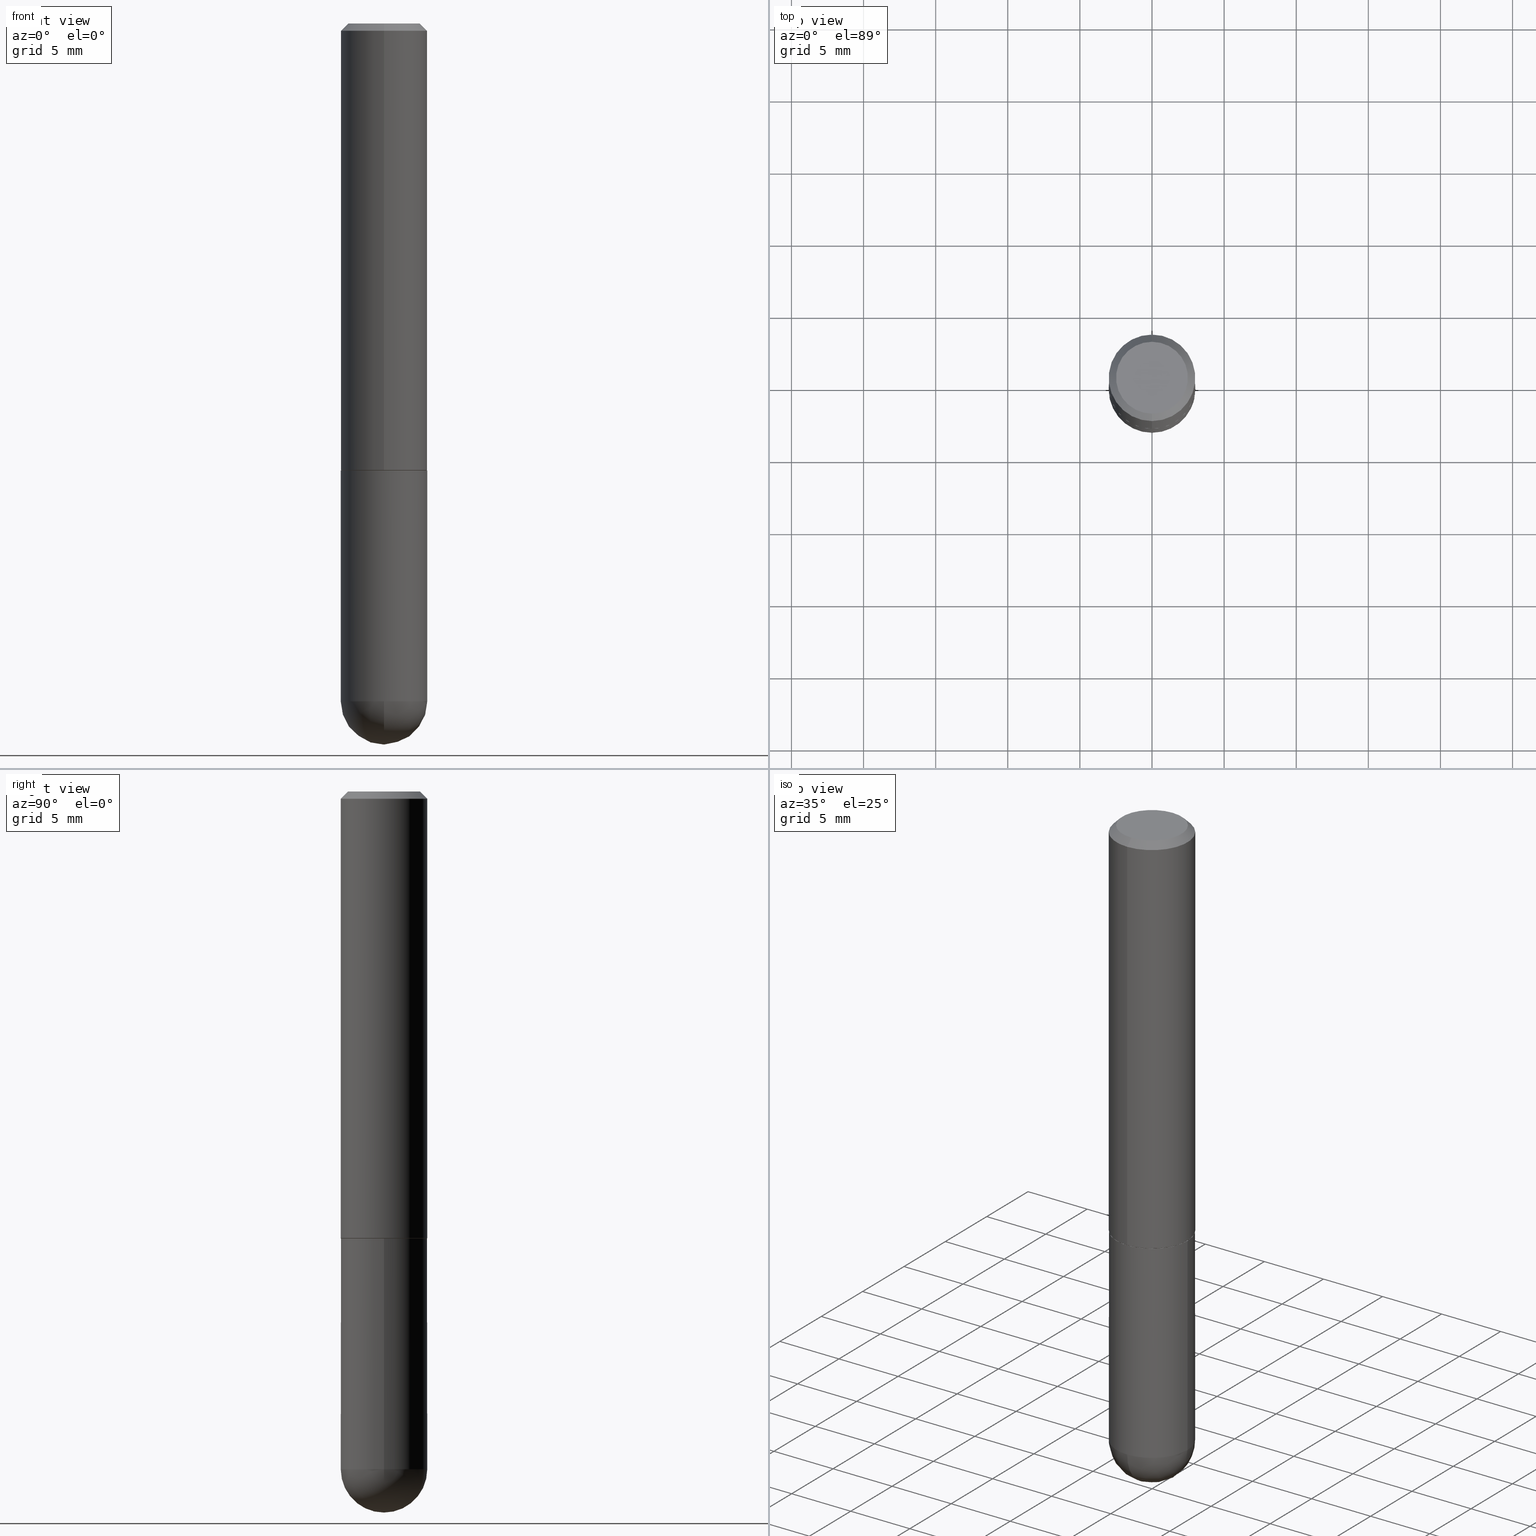
[diagram: canonical four-view strip — front | top / right | iso, engineering-drawing reading convention]
A machine part, canonical four-view strip (front | top / right | iso — engineering-drawing reading convention). The complete STEP part file that produces these views, byte-faithful:
ISO-10303-21;
HEADER;
FILE_DESCRIPTION (( 'STEP AP203' ),
    '1' );
FILE_NAME ('48744.STEP',
    '2024-04-10T12:00:42',
    ( '' ),
    ( '' ),
    'SwSTEP 2.0',
    'SolidWorks 2023',
    '' );
FILE_SCHEMA (( 'CONFIG_CONTROL_DESIGN' ));
ENDSEC;

DATA;
#1 = LINE ( 'NONE', #315, #317 ) ;
#2 = ORIENTED_EDGE ( 'NONE', *, *, #122, .T. ) ;
#3 = ADVANCED_FACE ( 'NONE', ( #96 ), #119, .T. ) ;
#4 = AXIS2_PLACEMENT_3D ( 'NONE', #158, #280, #409 ) ;
#5 = CARTESIAN_POINT ( 'NONE',  ( 8.320455435751069684E-16, 0.1170999999999957492, -1.220500000000000362 ) ) ;
#6 = FACE_OUTER_BOUND ( 'NONE', #278, .T. ) ;
#7 = CYLINDRICAL_SURFACE ( 'NONE', #321, 0.1180999999999999966 ) ;
#8 = EDGE_LOOP ( 'NONE', ( #136, #338, #405, #237 ) ) ;
#9 = DIRECTION ( 'NONE',  ( -2.446608497721967489E-29, 3.489849235695189824E-15, 1.000000000000000000 ) ) ;
#10 = DIRECTION ( 'NONE',  ( -2.445468806185136877E-29, 3.491481338843145188E-15, 1.000000000000000000 ) ) ;
#11 = CARTESIAN_POINT ( 'NONE',  ( 2.986085671469661143E-29, -4.259360992165978220E-15, -1.220499999999999918 ) ) ;
#12 = ADVANCED_FACE ( 'NONE', ( #340 ), #323, .T. ) ;
#13 = AXIS2_PLACEMENT_3D ( 'NONE', #80, #145, #355 ) ;
#14 = DIRECTION ( 'NONE',  ( -2.445468806185136597E-29, 3.491481338843145583E-15, 1.000000000000000000 ) ) ;
#15 = CARTESIAN_POINT ( 'NONE',  ( 2.197026823691284091E-45, -3.133845234576704690E-31, -8.979887161092311075E-17 ) ) ;
#16 = DIRECTION ( 'NONE',  ( -6.982962677686265922E-15, -1.000000000000000000, 3.505890868245046092E-15 ) ) ;
#17 = COORDINATED_UNIVERSAL_TIME_OFFSET ( 5, 0, .BEHIND. ) ;
#18 = EDGE_CURVE ( 'NONE', #108, #240, #47, .T. ) ;
#19 = CARTESIAN_POINT ( 'NONE',  ( 2.986085671469661704E-29, -4.259360992165979009E-15, -1.220499999999999918 ) ) ;
#20 = CARTESIAN_POINT ( 'NONE',  ( 4.893216995443941564E-31, -6.979698471390387290E-17, -0.02000000000000002470 ) ) ;
#21 = CC_DESIGN_PERSON_AND_ORGANIZATION_ASSIGNMENT ( #393, #275, ( #181 ) ) ;
#22 = CIRCLE ( 'NONE', #272, 0.1180999999999999966 ) ;
#23 = DIRECTION ( 'NONE',  ( 1.000000000000000000, -6.982962677686265133E-15, 0.000000000000000000 ) ) ;
#24 = PERSON_AND_ORGANIZATION_ROLE ( 'creator' ) ;
#25 = AXIS2_PLACEMENT_3D ( 'NONE', #232, #69, #106 ) ;
#26 = CARTESIAN_POINT ( 'NONE',  ( 8.355982572539081628E-16, 0.1170999999999957492, -1.220500000000000362 ) ) ;
#27 = APPROVAL_ROLE ( '' ) ;
#28 = EDGE_CURVE ( 'NONE', #247, #198, #192, .T. ) ;
#29 = CALENDAR_DATE ( 2024, 10, 4 ) ;
#30 = DIRECTION ( 'NONE',  ( -7.105427357601000281E-15, -1.000000000000000000, 0.000000000000000000 ) ) ;
#31 = ORIENTED_EDGE ( 'NONE', *, *, #374, .T. ) ;
#32 = ORIENTED_EDGE ( 'NONE', *, *, #365, .T. ) ;
#33 = CC_DESIGN_APPROVAL ( #35, ( #181 ) ) ;
#34 = DIRECTION ( 'NONE',  ( 2.446608497721967489E-29, -3.489849235695189824E-15, -1.000000000000000000 ) ) ;
#35 = APPROVAL ( #184, 'UNSPECIFIED' ) ;
#36 = AXIS2_PLACEMENT_3D ( 'NONE', #15, #271, #177 ) ;
#37 = AXIS2_PLACEMENT_3D ( 'NONE', #204, #391, #43 ) ;
#38 = CYLINDRICAL_SURFACE ( 'NONE', #361, 0.1180999999999999966 ) ;
#39 = DIRECTION ( 'NONE',  ( -6.982962677686265922E-15, -1.000000000000000000, 3.469747663417772269E-15 ) ) ;
#40 = COORDINATED_UNIVERSAL_TIME_OFFSET ( 5, 0, .BEHIND. ) ;
#41 = CONICAL_SURFACE ( 'NONE', #161, 0.1170999999999999958, 0.7853981633976361287 ) ;
#42 = CARTESIAN_POINT ( 'NONE',  ( -8.177049295570318772E-16, -0.1171000000000042424, -1.220499999999999474 ) ) ;
#43 = DIRECTION ( 'NONE',  ( -6.982962677686265922E-15, -1.000000000000000000, 3.499378301021686484E-15 ) ) ;
#44 = ORIENTED_EDGE ( 'NONE', *, *, #18, .T. ) ;
#45 = DIRECTION ( 'NONE',  ( 2.438088387897960049E-29, -3.491481338843145188E-15, -1.000000000000000000 ) ) ;
#46 = VERTEX_POINT ( 'NONE', #290 ) ;
#47 = LINE ( 'NONE', #327, #285 ) ;
#48 = DIRECTION ( 'NONE',  ( -6.982962677686265922E-15, -1.000000000000000000, 3.489849235695189824E-15 ) ) ;
#49 = EDGE_LOOP ( 'NONE', ( #227, #44, #346, #388 ) ) ;
#50 = ORGANIZATION ( 'UNSPECIFIED', 'UNSPECIFIED', '' ) ;
#51 = CARTESIAN_POINT ( 'NONE',  ( -8.177049295570318772E-16, -0.1171000000000042424, -1.220499999999999474 ) ) ;
#52 = CARTESIAN_POINT ( 'NONE',  ( 4.193975701051090586E-29, -6.934819437535407083E-15, -1.850400000000000045 ) ) ;
#53 = CYLINDRICAL_SURFACE ( 'NONE', #25, 0.1181000000000000799 ) ;
#54 = DIRECTION ( 'NONE',  ( -2.446608497721967489E-29, 3.489849235695189824E-15, 1.000000000000000000 ) ) ;
#55 = PERSON_AND_ORGANIZATION ( #292, #50 ) ;
#56 = ORIENTED_EDGE ( 'NONE', *, *, #166, .T. ) ;
#57 = DATE_AND_TIME ( #118, #279 ) ;
#58 = CARTESIAN_POINT ( 'NONE',  ( 6.850286386810235398E-16, 0.09810000000000010378, -3.872536458271600685E-16 ) ) ;
#59 = DATE_AND_TIME ( #248, #411 ) ;
#60 = DIMENSIONAL_EXPONENTS ( 1.000000000000000000, 0.000000000000000000, 0.000000000000000000, 0.000000000000000000, 0.000000000000000000, 0.000000000000000000, 0.000000000000000000 ) ;
#61 = EDGE_CURVE ( 'NONE', #46, #125, #67, .T. ) ;
#62 = VECTOR ( 'NONE', #328, 39.37007874015748143 ) ;
#63 = ADVANCED_FACE ( 'NONE', ( #64 ), #7, .T. ) ;
#64 = FACE_OUTER_BOUND ( 'NONE', #263, .T. ) ;
#65 = VERTEX_POINT ( 'NONE', #130 ) ;
#66 = DIRECTION ( 'NONE',  ( -2.446608497721967489E-29, 3.489849235695189824E-15, 1.000000000000000000 ) ) ;
#67 = LINE ( 'NONE', #197, #114 ) ;
#68 = DIRECTION ( 'NONE',  ( 6.982962677686265922E-15, 1.000000000000000000, -4.626330217890359870E-15 ) ) ;
#69 = DIRECTION ( 'NONE',  ( -2.446608497721967489E-29, 3.489849235695189824E-15, 1.000000000000000000 ) ) ;
#70 = CARTESIAN_POINT ( 'NONE',  ( 4.193975701051090586E-29, -6.934819437535407083E-15, -1.850400000000000045 ) ) ;
#71 = EDGE_CURVE ( 'NONE', #243, #100, #22, .T. ) ;
#72 = PERSON_AND_ORGANIZATION_ROLE ( 'design_supplier' ) ;
#73 = CARTESIAN_POINT ( 'NONE',  ( 8.391509709326787887E-16, 0.1181000000000000799, -4.121511947356022073E-16 ) ) ;
#74 = DIRECTION ( 'NONE',  ( 1.000000000000000000, -6.982962677686265133E-15, 0.000000000000000000 ) ) ;
#75 = APPLICATION_PROTOCOL_DEFINITION ( 'international standard', 'config_control_design', 1994, #148 ) ;
#76 = CONICAL_SURFACE ( 'NONE', #37, 0.1170999999999999958, 0.7853981633976361287 ) ;
#77 = EDGE_CURVE ( 'NONE', #375, #108, #144, .T. ) ;
#78 = CARTESIAN_POINT ( 'NONE',  ( 8.246878922347925374E-16, 0.1180999999999934463, -1.850400000000000489 ) ) ;
#79 = APPROVAL_DATE_TIME ( #366, #91 ) ;
#80 = CARTESIAN_POINT ( 'NONE',  ( 2.984694677948959472E-29, -4.261352974058059028E-15, -1.220499999999999918 ) ) ;
#81 = ORIENTED_EDGE ( 'NONE', *, *, #250, .T. ) ;
#82 = SHAPE_DEFINITION_REPRESENTATION ( #135, #304 ) ;
#83 = APPROVAL_STATUS ( 'not_yet_approved' ) ;
#84 = APPROVAL_PERSON_ORGANIZATION ( #398, #91, #179 ) ;
#85 = DIRECTION ( 'NONE',  ( -2.445468806185136597E-29, 3.491481338843145583E-15, 1.000000000000000000 ) ) ;
#86 = ORIENTED_EDGE ( 'NONE', *, *, #88, .F. ) ;
#87 = COORDINATED_UNIVERSAL_TIME_OFFSET ( 5, 0, .BEHIND. ) ;
#88 = EDGE_CURVE ( 'NONE', #392, #243, #410, .T. ) ;
#89 = CARTESIAN_POINT ( 'NONE',  ( 4.893216995443941564E-31, -6.979698471390387290E-17, -0.02000000000000002470 ) ) ;
#90 = ORIENTED_EDGE ( 'NONE', *, *, #71, .T. ) ;
#91 = APPROVAL ( #277, 'UNSPECIFIED' ) ;
#92 = VERTEX_POINT ( 'NONE', #51 ) ;
#93 = EDGE_CURVE ( 'NONE', #243, #65, #137, .T. ) ;
#94 =( NAMED_UNIT ( * ) SI_UNIT ( $, .STERADIAN. ) SOLID_ANGLE_UNIT ( ) );
#95 = CARTESIAN_POINT ( 'NONE',  ( 4.893216995443941564E-31, -6.979698471390387290E-17, -0.02000000000000002470 ) ) ;
#96 = FACE_OUTER_BOUND ( 'NONE', #49, .T. ) ;
#97 = CARTESIAN_POINT ( 'NONE',  ( 8.246878922347778449E-16, 0.1180999999999957362, -1.220500000000000362 ) ) ;
#98 = CIRCLE ( 'NONE', #246, 0.1180999999999999966 ) ;
#99 = DIRECTION ( 'NONE',  ( -6.982962677686265922E-15, -1.000000000000000000, 3.499378301021686484E-15 ) ) ;
#100 = VERTEX_POINT ( 'NONE', #359 ) ;
#101 = DIRECTION ( 'NONE',  ( -2.445468806185136597E-29, 3.491481338843145583E-15, 1.000000000000000000 ) ) ;
#102 = CC_DESIGN_PERSON_AND_ORGANIZATION_ASSIGNMENT ( #339, #301, ( #382 ) ) ;
#103 = VECTOR ( 'NONE', #110, 39.37007874015748143 ) ;
#104 = LOCAL_TIME ( 8, 0, 42.00000000000000000, #87 ) ;
#105 = PRODUCT_RELATED_PRODUCT_CATEGORY ( 'detail', '', ( #382 ) ) ;
#106 = DIRECTION ( 'NONE',  ( -6.982962677686265922E-15, -1.000000000000000000, 3.489849235695189824E-15 ) ) ;
#107 = ORIENTED_EDGE ( 'NONE', *, *, #347, .F. ) ;
#108 = VERTEX_POINT ( 'NONE', #274 ) ;
#109 = FACE_OUTER_BOUND ( 'NONE', #408, .T. ) ;
#110 = DIRECTION ( 'NONE',  ( -2.445468806185136877E-29, 3.491481338843145188E-15, 1.000000000000000000 ) ) ;
#111 = ORIENTED_EDGE ( 'NONE', *, *, #374, .F. ) ;
#112 = CARTESIAN_POINT ( 'NONE',  ( -8.246878922347485584E-16, -0.1181000000000000799, 4.121511947356022073E-16 ) ) ;
#113 = DIRECTION ( 'NONE',  ( 5.024295867789005867E-15, 0.7071067811866827979, 0.7071067811864122366 ) ) ;
#114 = VECTOR ( 'NONE', #10, 39.37007874015748143 ) ;
#115 = AXIS2_PLACEMENT_3D ( 'NONE', #19, #270, #48 ) ;
#116 = CARTESIAN_POINT ( 'NONE',  ( 0.000000000000000000, 0.000000000000000000, 0.000000000000000000 ) ) ;
#117 = ADVANCED_FACE ( 'NONE', ( #268 ), #389, .T. ) ;
#118 = CALENDAR_DATE ( 2024, 10, 4 ) ;
#119 = CONICAL_SURFACE ( 'NONE', #329, 0.1180999999999999966, 0.7853981633974471688 ) ;
#120 = AXIS2_PLACEMENT_3D ( 'NONE', #95, #386, #223 ) ;
#121 = ORIENTED_EDGE ( 'NONE', *, *, #236, .F. ) ;
#122 = EDGE_CURVE ( 'NONE', #138, #392, #159, .T. ) ;
#123 = MANIFOLD_SOLID_BREP ( 'Body-Move/Copy2[2]', #180 ) ;
#124 = CARTESIAN_POINT ( 'NONE',  ( -8.246878922347193706E-16, -0.1181000000000044237, -1.219499999999999584 ) ) ;
#125 = VERTEX_POINT ( 'NONE', #334 ) ;
#126 = AXIS2_PLACEMENT_3D ( 'NONE', #97, #45, #203 ) ;
#127 = DIRECTION ( 'NONE',  ( 1.000000000000000000, -6.982962677686266711E-15, 4.876176775795936353E-29 ) ) ;
#128 = CARTESIAN_POINT ( 'NONE',  ( 8.246878922347484598E-16, 0.1180999999999999273, -0.02000000000000044104 ) ) ;
#129 = ADVANCED_FACE ( 'NONE', ( #142 ), #396, .T. ) ;
#130 = CARTESIAN_POINT ( 'NONE',  ( -0.1180999999999999966, -4.521844050794029710E-15, -1.220499999999999918 ) ) ;
#131 = EDGE_LOOP ( 'NONE', ( #300, #2, #121, #404 ) ) ;
#132 = CC_DESIGN_DATE_AND_TIME_ASSIGNMENT ( #57, #141, ( #238 ) ) ;
#133 = ORIENTED_EDGE ( 'NONE', *, *, #61, .F. ) ;
#134 = AXIS2_PLACEMENT_3D ( 'NONE', #156, #222, #162 ) ;
#135 = PRODUCT_DEFINITION_SHAPE ( 'NONE', 'NONE',  #238 ) ;
#136 = ORIENTED_EDGE ( 'NONE', *, *, #28, .T. ) ;
#137 = LINE ( 'NONE', #147, #103 ) ;
#138 = VERTEX_POINT ( 'NONE', #367 ) ;
#139 = APPROVAL_DATE_TIME ( #151, #350 ) ;
#140 = EDGE_LOOP ( 'NONE', ( #165, #169, #291, #81 ) ) ;
#141 = DATE_TIME_ROLE ( 'creation_date' ) ;
#142 = FACE_OUTER_BOUND ( 'NONE', #154, .T. ) ;
#143 = DIRECTION ( 'NONE',  ( -2.446608497721967489E-29, 3.489849235695189824E-15, 1.000000000000000000 ) ) ;
#144 = CIRCLE ( 'NONE', #36, 0.09810000000000010378 ) ;
#145 = DIRECTION ( 'NONE',  ( -2.445468806185136597E-29, 3.491481338843145583E-15, 1.000000000000000000 ) ) ;
#146 = PRODUCT_DEFINITION_FORMATION_WITH_SPECIFIED_SOURCE ( 'ANY', '', #382, .NOT_KNOWN. ) ;
#147 = CARTESIAN_POINT ( 'NONE',  ( -0.1180999999999999966, 8.391509709326782957E-16, -5.809262341591043784E-30 ) ) ;
#148 = APPLICATION_CONTEXT ( 'configuration controlled 3d designs of mechanical parts and assemblies' ) ;
#149 = DIRECTION ( 'NONE',  ( -2.445468806185136597E-29, 3.491481338843145583E-15, 1.000000000000000000 ) ) ;
#150 = EDGE_LOOP ( 'NONE', ( #352, #364 ) ) ;
#151 = DATE_AND_TIME ( #29, #104 ) ;
#152 = AXIS2_PLACEMENT_3D ( 'NONE', #353, #200, #39 ) ;
#153 = AXIS2_PLACEMENT_3D ( 'NONE', #191, #342, #30 ) ;
#154 = EDGE_LOOP ( 'NONE', ( #319, #31, #216, #309 ) ) ;
#155 = EDGE_LOOP ( 'NONE', ( #269, #90, #56, #228, #343 ) ) ;
#156 = CARTESIAN_POINT ( 'NONE',  ( 0.000000000000000000, 0.000000000000000000, 0.000000000000000000 ) ) ;
#157 = EDGE_CURVE ( 'NONE', #65, #125, #316, .T. ) ;
#158 = CARTESIAN_POINT ( 'NONE',  ( 2.986085671469661143E-29, -4.259360992165978220E-15, -1.220499999999999918 ) ) ;
#159 = CIRCLE ( 'NONE', #406, 0.1181000000000002603 ) ;
#160 =( LENGTH_UNIT ( ) NAMED_UNIT ( * ) SI_UNIT ( $, .METRE. ) );
#161 = AXIS2_PLACEMENT_3D ( 'NONE', #282, #379, #99 ) ;
#162 = DIRECTION ( 'NONE',  ( 1.000000000000000000, 0.000000000000000000, 0.000000000000000000 ) ) ;
#163 = CARTESIAN_POINT ( 'NONE',  ( 4.893216995443941564E-31, -6.979698471390387290E-17, -0.02000000000000002470 ) ) ;
#164 = CARTESIAN_POINT ( 'NONE',  ( 0.000000000000000000, 0.000000000000000000, 0.000000000000000000 ) ) ;
#165 = ORIENTED_EDGE ( 'NONE', *, *, #18, .F. ) ;
#166 = EDGE_CURVE ( 'NONE', #100, #46, #244, .T. ) ;
#167 = ORIENTED_EDGE ( 'NONE', *, *, #71, .F. ) ;
#168 = LINE ( 'NONE', #42, #381 ) ;
#169 = ORIENTED_EDGE ( 'NONE', *, *, #77, .F. ) ;
#170 = ORIENTED_EDGE ( 'NONE', *, *, #88, .T. ) ;
#171 = APPLICATION_CONTEXT ( 'configuration controlled 3d designs of mechanical parts and assemblies' ) ;
#172 = FACE_OUTER_BOUND ( 'NONE', #150, .T. ) ;
#173 = ADVANCED_FACE ( 'NONE', ( #390 ), #53, .T. ) ;
#174 = AXIS2_PLACEMENT_3D ( 'NONE', #325, #387, #68 ) ;
#175 = AXIS2_PLACEMENT_3D ( 'NONE', #351, #66, #385 ) ;
#176 = FACE_OUTER_BOUND ( 'NONE', #335, .T. ) ;
#177 = DIRECTION ( 'NONE',  ( -6.982962677686267499E-15, -1.000000000000000000, 3.489849235695190219E-15 ) ) ;
#178 = SPHERICAL_SURFACE ( 'NONE', #281, 0.1181000000000002603 ) ;
#179 = APPROVAL_ROLE ( '' ) ;
#180 = CLOSED_SHELL ( 'NONE', ( #330, #173, #3, #117, #129, #210, #214, #215 ) ) ;
#181 = SECURITY_CLASSIFICATION ( '', '', #298 ) ;
#182 = CARTESIAN_POINT ( 'NONE',  ( 4.525095478964976833E-29, -6.460637069395356787E-15, -1.850400000000000045 ) ) ;
#183 = EDGE_CURVE ( 'NONE', #198, #369, #267, .T. ) ;
#184 = APPROVAL_STATUS ( 'not_yet_approved' ) ;
#185 = PERSON_AND_ORGANIZATION_ROLE ( 'creator' ) ;
#186 = DIRECTION ( 'NONE',  ( 1.000000000000000000, -6.982962677686265133E-15, 0.000000000000000000 ) ) ;
#187 = AXIS2_PLACEMENT_3D ( 'NONE', #182, #85, #186 ) ;
#188 = CARTESIAN_POINT ( 'NONE',  ( -8.102248135368172434E-16, -0.1181000000000000660, -0.01999999999999961184 ) ) ;
#189 = ORIENTED_EDGE ( 'NONE', *, *, #236, .T. ) ;
#190 = DIRECTION ( 'NONE',  ( -6.982962677686267499E-15, -1.000000000000000000, 3.489849235695190219E-15 ) ) ;
#191 = CARTESIAN_POINT ( 'NONE',  ( 4.193975701051090586E-29, -6.934819437535407083E-15, -1.850400000000000045 ) ) ;
#192 = CIRCLE ( 'NONE', #152, 0.1181000000000001632 ) ;
#193 = CC_DESIGN_APPROVAL ( #91, ( #238 ) ) ;
#194 = FACE_OUTER_BOUND ( 'NONE', #394, .T. ) ;
#195 = DIRECTION ( 'NONE',  ( -2.445468806185136597E-29, 3.491481338843145583E-15, 1.000000000000000000 ) ) ;
#196 = ORIENTED_EDGE ( 'NONE', *, *, #357, .F. ) ;
#197 = CARTESIAN_POINT ( 'NONE',  ( 0.1180999999999999966, -8.246878922347480654E-16, 5.758764772215000440E-30 ) ) ;
#198 = VERTEX_POINT ( 'NONE', #202 ) ;
#199 = ADVANCED_FACE ( 'NONE', ( #109 ), #178, .T. ) ;
#200 = DIRECTION ( 'NONE',  ( -2.446608497721967489E-29, 3.489849235695189824E-15, 1.000000000000000000 ) ) ;
#201 = APPROVAL_PERSON_ORGANIZATION ( #55, #35, #224 ) ;
#202 = CARTESIAN_POINT ( 'NONE',  ( 8.391509709326943687E-16, 0.1180999999999959166, -1.219500000000000473 ) ) ;
#203 = DIRECTION ( 'NONE',  ( -1.000000000000000000, 6.982962677686265922E-15, -4.876176775795935793E-29 ) ) ;
#204 = CARTESIAN_POINT ( 'NONE',  ( 2.986085671469661143E-29, -4.259360992165978220E-15, -1.220499999999999918 ) ) ;
#205 = DESIGN_CONTEXT ( 'detailed design', #171, 'design' ) ;
#206 = EDGE_LOOP ( 'NONE', ( #305, #283, #360, #111 ) ) ;
#207 = MECHANICAL_CONTEXT ( 'NONE', #148, 'mechanical' ) ;
#208 = LOCAL_TIME ( 8, 0, 42.00000000000000000, #40 ) ;
#209 = DIRECTION ( 'NONE',  ( -1.000000000000000000, 6.982962677686265922E-15, -4.883557194083112901E-29 ) ) ;
#210 = ADVANCED_FACE ( 'NONE', ( #303 ), #76, .T. ) ;
#211 = DIRECTION ( 'NONE',  ( 6.982962677686265922E-15, 1.000000000000000000, -3.505890868245046092E-15 ) ) ;
#212 = CARTESIAN_POINT ( 'NONE',  ( 2.197026823691284091E-45, -3.133845234576704690E-31, -8.979887161092311075E-17 ) ) ;
#213 = PERSON_AND_ORGANIZATION ( #292, #50 ) ;
#214 = ADVANCED_FACE ( 'NONE', ( #176 ), #326, .F. ) ;
#215 = ADVANCED_FACE ( 'NONE', ( #172 ), #297, .F. ) ;
#216 = ORIENTED_EDGE ( 'NONE', *, *, #265, .T. ) ;
#217 = AXIS2_PLACEMENT_3D ( 'NONE', #20, #233, #211 ) ;
#218 =( GEOMETRIC_REPRESENTATION_CONTEXT ( 3 ) GLOBAL_UNCERTAINTY_ASSIGNED_CONTEXT ( ( #288 ) ) GLOBAL_UNIT_ASSIGNED_CONTEXT ( ( #412, #378, #94 ) ) REPRESENTATION_CONTEXT ( 'NONE', 'WORKASPACE' ) );
#219 = DIRECTION ( 'NONE',  ( 6.982962677686265922E-15, 1.000000000000000000, -3.505890868245046092E-15 ) ) ;
#220 = DIRECTION ( 'NONE',  ( 2.446608497721967208E-29, -3.489849235695189824E-15, -1.000000000000000000 ) ) ;
#221 = CIRCLE ( 'NONE', #120, 0.1180999999999999966 ) ;
#222 = DIRECTION ( 'NONE',  ( 0.000000000000000000, 0.000000000000000000, 1.000000000000000000 ) ) ;
#223 = DIRECTION ( 'NONE',  ( -6.982962677686265922E-15, -1.000000000000000000, 3.505890868245046092E-15 ) ) ;
#224 = APPROVAL_ROLE ( '' ) ;
#225 = AXIS2_PLACEMENT_3D ( 'NONE', #58, #220, #313 ) ;
#226 = EDGE_CURVE ( 'NONE', #138, #100, #356, .T. ) ;
#227 = ORIENTED_EDGE ( 'NONE', *, *, #302, .F. ) ;
#228 = ORIENTED_EDGE ( 'NONE', *, *, #61, .T. ) ;
#229 = DIRECTION ( 'NONE',  ( 1.000000000000000000, -6.982962677686265133E-15, 0.000000000000000000 ) ) ;
#230 = AXIS2_PLACEMENT_3D ( 'NONE', #311, #149, #74 ) ;
#231 = AXIS2_PLACEMENT_3D ( 'NONE', #89, #332, #16 ) ;
#232 = CARTESIAN_POINT ( 'NONE',  ( 0.000000000000000000, 0.000000000000000000, 0.000000000000000000 ) ) ;
#233 = DIRECTION ( 'NONE',  ( 2.446608497721967489E-29, -3.489849235695189824E-15, -1.000000000000000000 ) ) ;
#234 = ORIENTED_EDGE ( 'NONE', *, *, #93, .T. ) ;
#235 = VECTOR ( 'NONE', #143, 39.37007874015748143 ) ;
#236 = EDGE_CURVE ( 'NONE', #46, #392, #397, .T. ) ;
#237 = ORIENTED_EDGE ( 'NONE', *, *, #265, .F. ) ;
#238 = PRODUCT_DEFINITION ( 'UNKNOWN', '', #146, #205 ) ;
#239 = DIRECTION ( 'NONE',  ( -6.982962677686265922E-15, -1.000000000000000000, 3.489849235695189824E-15 ) ) ;
#240 = VERTEX_POINT ( 'NONE', #188 ) ;
#241 = DATE_TIME_ROLE ( 'classification_date' ) ;
#242 = PERSON_AND_ORGANIZATION ( #292, #50 ) ;
#243 = VERTEX_POINT ( 'NONE', #310 ) ;
#244 = CIRCLE ( 'NONE', #337, 0.1180999999999999966 ) ;
#245 = EDGE_CURVE ( 'NONE', #266, #92, #264, .T. ) ;
#246 = AXIS2_PLACEMENT_3D ( 'NONE', #383, #101, #229 ) ;
#247 = VERTEX_POINT ( 'NONE', #124 ) ;
#248 = CALENDAR_DATE ( 2024, 10, 4 ) ;
#249 = COORDINATED_UNIVERSAL_TIME_OFFSET ( 5, 0, .BEHIND. ) ;
#250 = EDGE_CURVE ( 'NONE', #369, #240, #348, .T. ) ;
#251 = CC_DESIGN_SECURITY_CLASSIFICATION ( #181, ( #146 ) ) ;
#252 = CC_DESIGN_PERSON_AND_ORGANIZATION_ASSIGNMENT ( #306, #24, ( #146 ) ) ;
#253 = DIRECTION ( 'NONE',  ( 4.937700262164541731E-15, 0.7071067811865442421, -0.7071067811865507924 ) ) ;
#254 = DIRECTION ( 'NONE',  ( -6.982962677686265922E-15, -1.000000000000000000, 3.499378301021686484E-15 ) ) ;
#255 = VECTOR ( 'NONE', #113, 39.37007874015748143 ) ;
#256 = ORIENTED_EDGE ( 'NONE', *, *, #347, .T. ) ;
#257 = ORIENTED_EDGE ( 'NONE', *, *, #157, .T. ) ;
#258 = DIRECTION ( 'NONE',  ( 1.000000000000000000, -6.982962677686266711E-15, 4.876176775795936353E-29 ) ) ;
#259 = CARTESIAN_POINT ( 'NONE',  ( 4.525095478964976833E-29, -6.460637069395356787E-15, -1.850400000000000045 ) ) ;
#260 = ORIENTED_EDGE ( 'NONE', *, *, #384, .T. ) ;
#261 = CARTESIAN_POINT ( 'NONE',  ( 4.525095478964976833E-29, -6.460637069395356787E-15, -1.850400000000000045 ) ) ;
#262 = CLOSED_SHELL ( 'NONE', ( #63, #199, #12, #354, #312 ) ) ;
#263 = EDGE_LOOP ( 'NONE', ( #170, #234, #107, #133, #189 ) ) ;
#264 = CIRCLE ( 'NONE', #4, 0.1170999999999999958 ) ;
#265 = EDGE_CURVE ( 'NONE', #247, #240, #395, .T. ) ;
#266 = VERTEX_POINT ( 'NONE', #26 ) ;
#267 = LINE ( 'NONE', #73, #62 ) ;
#268 = FACE_OUTER_BOUND ( 'NONE', #140, .T. ) ;
#269 = ORIENTED_EDGE ( 'NONE', *, *, #93, .F. ) ;
#270 = DIRECTION ( 'NONE',  ( -2.446608497721967208E-29, 3.489849235695189824E-15, 1.000000000000000000 ) ) ;
#271 = DIRECTION ( 'NONE',  ( -2.446608497721967489E-29, 3.489849235695189824E-15, 1.000000000000000000 ) ) ;
#272 = AXIS2_PLACEMENT_3D ( 'NONE', #259, #294, #23 ) ;
#273 = CIRCLE ( 'NONE', #407, 0.1170999999999999958 ) ;
#274 = CARTESIAN_POINT ( 'NONE',  ( -7.416198335591027009E-16, -0.09810000000000010378, 2.525553384107754209E-16 ) ) ;
#275 = PERSON_AND_ORGANIZATION_ROLE ( 'classification_officer' ) ;
#276 = DIRECTION ( 'NONE',  ( -2.446608497721967489E-29, 3.489849235695189824E-15, 1.000000000000000000 ) ) ;
#277 = APPROVAL_STATUS ( 'not_yet_approved' ) ;
#278 = EDGE_LOOP ( 'NONE', ( #32, #260, #372, #196 ) ) ;
#279 = LOCAL_TIME ( 8, 0, 42.00000000000000000, #307 ) ;
#280 = DIRECTION ( 'NONE',  ( -2.446608497721967489E-29, 3.489849235695189824E-15, 1.000000000000000000 ) ) ;
#281 = AXIS2_PLACEMENT_3D ( 'NONE', #70, #209, #362 ) ;
#282 = CARTESIAN_POINT ( 'NONE',  ( 2.986085671469661143E-29, -4.259360992165978220E-15, -1.220499999999999918 ) ) ;
#283 = ORIENTED_EDGE ( 'NONE', *, *, #245, .T. ) ;
#284 = LINE ( 'NONE', #5, #255 ) ;
#285 = VECTOR ( 'NONE', #287, 39.37007874015748143 ) ;
#286 = CIRCLE ( 'NONE', #175, 0.1181000000000001632 ) ;
#287 = DIRECTION ( 'NONE',  ( -4.851104656540957964E-15, -0.7071067811865491270, -0.7071067811865459074 ) ) ;
#288 = UNCERTAINTY_MEASURE_WITH_UNIT (LENGTH_MEASURE( 1.000000000000000082E-05 ), #412, 'distance_accuracy_value', 'NONE');
#289 = DIRECTION ( 'NONE',  ( -2.445468806185136597E-29, 3.491481338843145583E-15, 1.000000000000000000 ) ) ;
#290 = CARTESIAN_POINT ( 'NONE',  ( 0.1180999999999999966, -6.185682913961456170E-15, -1.850400000000000045 ) ) ;
#291 = ORIENTED_EDGE ( 'NONE', *, *, #324, .T. ) ;
#292 = PERSON ( 'UNSPECIFIED', 'UNSPECIFIED', 'UNSPECIFIED', ('UNSPECIFIED'), ('UNSPECIFIED'), ('UNSPECIFIED') ) ;
#293 = DIRECTION ( 'NONE',  ( 1.000000000000000000, -6.982962677686265133E-15, 0.000000000000000000 ) ) ;
#294 = DIRECTION ( 'NONE',  ( -2.445468806185136597E-29, 3.491481338843145583E-15, 1.000000000000000000 ) ) ;
#295 = ORIENTED_EDGE ( 'NONE', *, *, #226, .T. ) ;
#296 = CC_DESIGN_DATE_AND_TIME_ASSIGNMENT ( #59, #241, ( #181 ) ) ;
#297 = PLANE ( 'NONE',  #225 ) ;
#298 = SECURITY_CLASSIFICATION_LEVEL ( 'unclassified' ) ;
#299 = CIRCLE ( 'NONE', #371, 0.09810000000000010378 ) ;
#300 = ORIENTED_EDGE ( 'NONE', *, *, #226, .F. ) ;
#301 = PERSON_AND_ORGANIZATION_ROLE ( 'design_owner' ) ;
#302 = EDGE_CURVE ( 'NONE', #108, #375, #299, .T. ) ;
#303 = FACE_OUTER_BOUND ( 'NONE', #206, .T. ) ;
#304 = ADVANCED_BREP_SHAPE_REPRESENTATION ( '48744', ( #403, #123, #134 ), #218 ) ;
#305 = ORIENTED_EDGE ( 'NONE', *, *, #384, .F. ) ;
#306 = PERSON_AND_ORGANIZATION ( #292, #50 ) ;
#307 = COORDINATED_UNIVERSAL_TIME_OFFSET ( 5, 0, .BEHIND. ) ;
#308 = ORIENTED_EDGE ( 'NONE', *, *, #365, .F. ) ;
#309 = ORIENTED_EDGE ( 'NONE', *, *, #250, .F. ) ;
#310 = CARTESIAN_POINT ( 'NONE',  ( -0.1180999999999999966, -4.521844050794030499E-15, -1.850400000000000045 ) ) ;
#311 = CARTESIAN_POINT ( 'NONE',  ( 4.525095478964976833E-29, -6.460637069395356787E-15, -1.850400000000000045 ) ) ;
#312 = ADVANCED_FACE ( 'NONE', ( #344 ), #38, .T. ) ;
#313 = DIRECTION ( 'NONE',  ( 6.982962677686265922E-15, 1.000000000000000000, -3.489849235695189824E-15 ) ) ;
#314 = EDGE_CURVE ( 'NONE', #240, #369, #221, .T. ) ;
#315 = CARTESIAN_POINT ( 'NONE',  ( 8.246878922347484598E-16, 0.1180999999999999273, -0.02000000000000044104 ) ) ;
#316 = CIRCLE ( 'NONE', #13, 0.1180999999999999966 ) ;
#317 = VECTOR ( 'NONE', #253, 39.37007874015748143 ) ;
#318 = PLANE ( 'NONE',  #126 ) ;
#319 = ORIENTED_EDGE ( 'NONE', *, *, #183, .F. ) ;
#320 = CARTESIAN_POINT ( 'NONE',  ( 7.548582654578859505E-16, 0.09810000000000010378, -4.321530816326215192E-16 ) ) ;
#321 = AXIS2_PLACEMENT_3D ( 'NONE', #164, #195, #127 ) ;
#322 = LOCAL_TIME ( 8, 0, 42.00000000000000000, #17 ) ;
#323 = SPHERICAL_SURFACE ( 'NONE', #174, 0.1181000000000002603 ) ;
#324 = EDGE_CURVE ( 'NONE', #375, #369, #1, .T. ) ;
#325 = CARTESIAN_POINT ( 'NONE',  ( 4.193975701051090586E-29, -6.934819437535407083E-15, -1.850400000000000045 ) ) ;
#326 = PLANE ( 'NONE',  #115 ) ;
#327 = CARTESIAN_POINT ( 'NONE',  ( -8.102248135368172434E-16, -0.1181000000000000660, -0.01999999999999961184 ) ) ;
#328 = DIRECTION ( 'NONE',  ( -2.446608497721967489E-29, 3.489849235695189824E-15, 1.000000000000000000 ) ) ;
#329 = AXIS2_PLACEMENT_3D ( 'NONE', #163, #34, #219 ) ;
#330 = ADVANCED_FACE ( 'NONE', ( #6 ), #41, .T. ) ;
#331 = APPROVAL_PERSON_ORGANIZATION ( #242, #350, #27 ) ;
#332 = DIRECTION ( 'NONE',  ( -2.446608497721967489E-29, 3.489849235695189824E-15, 1.000000000000000000 ) ) ;
#333 = APPLICATION_PROTOCOL_DEFINITION ( 'international standard', 'config_control_design', 1994, #171 ) ;
#334 = CARTESIAN_POINT ( 'NONE',  ( 0.1180999999999999966, -5.086040866292807290E-15, -1.220499999999999918 ) ) ;
#335 = EDGE_LOOP ( 'NONE', ( #308, #345 ) ) ;
#336 = DIRECTION ( 'NONE',  ( 1.000000000000000000, -6.982962677686265922E-15, 4.883557194083112340E-29 ) ) ;
#337 = AXIS2_PLACEMENT_3D ( 'NONE', #261, #14, #293 ) ;
#338 = ORIENTED_EDGE ( 'NONE', *, *, #183, .T. ) ;
#339 = PERSON_AND_ORGANIZATION ( #292, #50 ) ;
#340 = FACE_OUTER_BOUND ( 'NONE', #131, .T. ) ;
#341 = CALENDAR_DATE ( 2024, 10, 4 ) ;
#342 = DIRECTION ( 'NONE',  ( -1.000000000000000000, 7.105427357601001070E-15, -4.926315508542082329E-29 ) ) ;
#343 = ORIENTED_EDGE ( 'NONE', *, *, #157, .F. ) ;
#344 = FACE_OUTER_BOUND ( 'NONE', #155, .T. ) ;
#345 = ORIENTED_EDGE ( 'NONE', *, *, #245, .F. ) ;
#346 = ORIENTED_EDGE ( 'NONE', *, *, #314, .T. ) ;
#347 = EDGE_CURVE ( 'NONE', #125, #65, #98, .T. ) ;
#348 = CIRCLE ( 'NONE', #231, 0.1180999999999999966 ) ;
#349 = DIRECTION ( 'NONE',  ( -4.937700262165474954E-15, -0.7071067811866779129, 0.7071067811864171215 ) ) ;
#350 = APPROVAL ( #83, 'UNSPECIFIED' ) ;
#351 = CARTESIAN_POINT ( 'NONE',  ( 2.983639062971939507E-29, -4.255871142930284635E-15, -1.219500000000000028 ) ) ;
#352 = ORIENTED_EDGE ( 'NONE', *, *, #77, .T. ) ;
#353 = CARTESIAN_POINT ( 'NONE',  ( 2.983639062971939507E-29, -4.255871142930284635E-15, -1.219500000000000028 ) ) ;
#354 = ADVANCED_FACE ( 'NONE', ( #194 ), #318, .F. ) ;
#355 = DIRECTION ( 'NONE',  ( 1.000000000000000000, -6.982962677686265133E-15, 0.000000000000000000 ) ) ;
#356 = CIRCLE ( 'NONE', #153, 0.1181000000000002603 ) ;
#357 = EDGE_CURVE ( 'NONE', #92, #247, #168, .T. ) ;
#358 = CALENDAR_DATE ( 2024, 10, 4 ) ;
#359 = CARTESIAN_POINT ( 'NONE',  ( -8.391509709326354014E-16, -0.1181000000000068245, -1.850399999999999379 ) ) ;
#360 = ORIENTED_EDGE ( 'NONE', *, *, #357, .T. ) ;
#361 = AXIS2_PLACEMENT_3D ( 'NONE', #380, #289, #258 ) ;
#362 = DIRECTION ( 'NONE',  ( 6.982962677686265922E-15, 1.000000000000000000, -4.626330217890359870E-15 ) ) ;
#363 = PERSON_AND_ORGANIZATION ( #292, #50 ) ;
#364 = ORIENTED_EDGE ( 'NONE', *, *, #302, .T. ) ;
#365 = EDGE_CURVE ( 'NONE', #92, #266, #273, .T. ) ;
#366 = DATE_AND_TIME ( #341, #322 ) ;
#367 = CARTESIAN_POINT ( 'NONE',  ( 4.487835323999160412E-29, -7.339931844303818219E-15, -1.968500000000000361 ) ) ;
#368 = APPROVAL_DATE_TIME ( #401, #35 ) ;
#369 = VERTEX_POINT ( 'NONE', #128 ) ;
#370 = AXIS2_PLACEMENT_3D ( 'NONE', #116, #54, #239 ) ;
#371 = AXIS2_PLACEMENT_3D ( 'NONE', #212, #276, #190 ) ;
#372 = ORIENTED_EDGE ( 'NONE', *, *, #28, .F. ) ;
#373 = ORIENTED_EDGE ( 'NONE', *, *, #122, .F. ) ;
#374 = EDGE_CURVE ( 'NONE', #198, #247, #286, .T. ) ;
#375 = VERTEX_POINT ( 'NONE', #320 ) ;
#376 = LENGTH_MEASURE_WITH_UNIT ( LENGTH_MEASURE( 0.02539999999999999897 ), #160 );
#377 = CC_DESIGN_APPROVAL ( #350, ( #146 ) ) ;
#378 =( NAMED_UNIT ( * ) PLANE_ANGLE_UNIT ( ) SI_UNIT ( $, .RADIAN. ) );
#379 = DIRECTION ( 'NONE',  ( -2.446608497721967489E-29, 3.489849235695189824E-15, 1.000000000000000000 ) ) ;
#380 = CARTESIAN_POINT ( 'NONE',  ( 0.000000000000000000, 0.000000000000000000, 0.000000000000000000 ) ) ;
#381 = VECTOR ( 'NONE', #349, 39.37007874015748143 ) ;
#382 = PRODUCT ( '48744', '48744', '', ( #207 ) ) ;
#383 = CARTESIAN_POINT ( 'NONE',  ( 2.984694677948959472E-29, -4.261352974058059028E-15, -1.220499999999999918 ) ) ;
#384 = EDGE_CURVE ( 'NONE', #266, #198, #284, .T. ) ;
#385 = DIRECTION ( 'NONE',  ( -6.982962677686265922E-15, -1.000000000000000000, 3.469747663417772269E-15 ) ) ;
#386 = DIRECTION ( 'NONE',  ( -2.446608497721967489E-29, 3.489849235695189824E-15, 1.000000000000000000 ) ) ;
#387 = DIRECTION ( 'NONE',  ( -1.000000000000000000, 6.982962677686265922E-15, -4.883557194083112901E-29 ) ) ;
#388 = ORIENTED_EDGE ( 'NONE', *, *, #324, .F. ) ;
#389 = CONICAL_SURFACE ( 'NONE', #217, 0.1180999999999999966, 0.7853981633974471688 ) ;
#390 = FACE_OUTER_BOUND ( 'NONE', #8, .T. ) ;
#391 = DIRECTION ( 'NONE',  ( -2.446608497721967489E-29, 3.489849235695189824E-15, 1.000000000000000000 ) ) ;
#392 = VERTEX_POINT ( 'NONE', #78 ) ;
#393 = PERSON_AND_ORGANIZATION ( #292, #50 ) ;
#394 = EDGE_LOOP ( 'NONE', ( #256, #257 ) ) ;
#395 = LINE ( 'NONE', #112, #235 ) ;
#396 = CYLINDRICAL_SURFACE ( 'NONE', #370, 0.1181000000000000799 ) ;
#397 = CIRCLE ( 'NONE', #187, 0.1180999999999999966 ) ;
#398 = PERSON_AND_ORGANIZATION ( #292, #50 ) ;
#399 = DIRECTION ( 'NONE',  ( 6.982962677686265133E-15, 1.000000000000000000, 0.000000000000000000 ) ) ;
#400 = CC_DESIGN_PERSON_AND_ORGANIZATION_ASSIGNMENT ( #213, #185, ( #238 ) ) ;
#401 = DATE_AND_TIME ( #358, #208 ) ;
#402 = CC_DESIGN_PERSON_AND_ORGANIZATION_ASSIGNMENT ( #363, #72, ( #146 ) ) ;
#403 = MANIFOLD_SOLID_BREP ( 'Body-Move/Copy2[1]', #262 ) ;
#404 = ORIENTED_EDGE ( 'NONE', *, *, #166, .F. ) ;
#405 = ORIENTED_EDGE ( 'NONE', *, *, #314, .F. ) ;
#406 = AXIS2_PLACEMENT_3D ( 'NONE', #52, #336, #399 ) ;
#407 = AXIS2_PLACEMENT_3D ( 'NONE', #11, #9, #254 ) ;
#408 = EDGE_LOOP ( 'NONE', ( #373, #295, #167, #86 ) ) ;
#409 = DIRECTION ( 'NONE',  ( -6.982962677686265922E-15, -1.000000000000000000, 3.499378301021686484E-15 ) ) ;
#410 = CIRCLE ( 'NONE', #230, 0.1180999999999999966 ) ;
#411 = LOCAL_TIME ( 8, 0, 42.00000000000000000, #249 ) ;
#412 =( CONVERSION_BASED_UNIT ( 'INCH', #376 ) LENGTH_UNIT ( ) NAMED_UNIT ( #60 ) );
ENDSEC;
END-ISO-10303-21;
